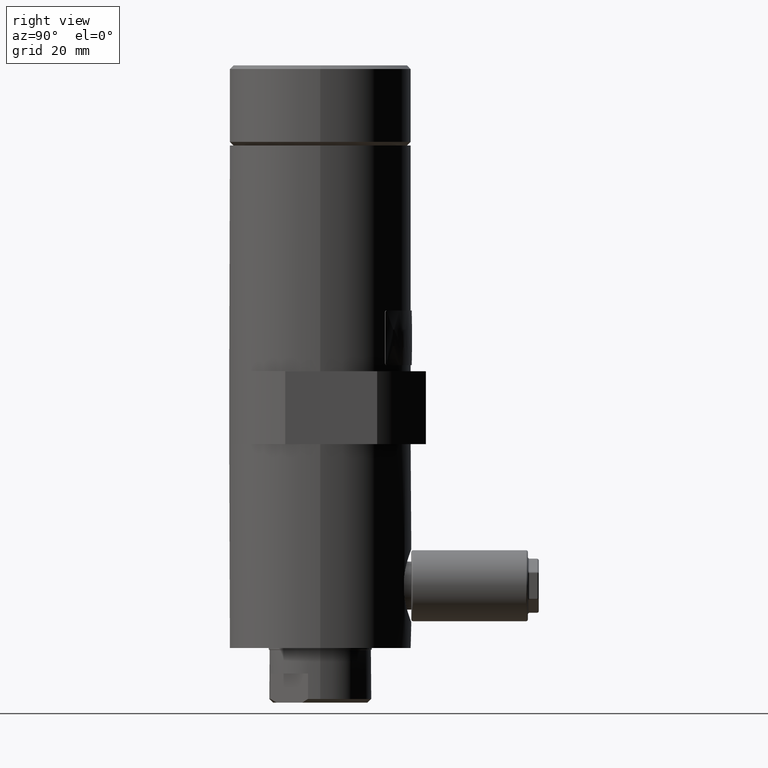
[diagram: clean part render]
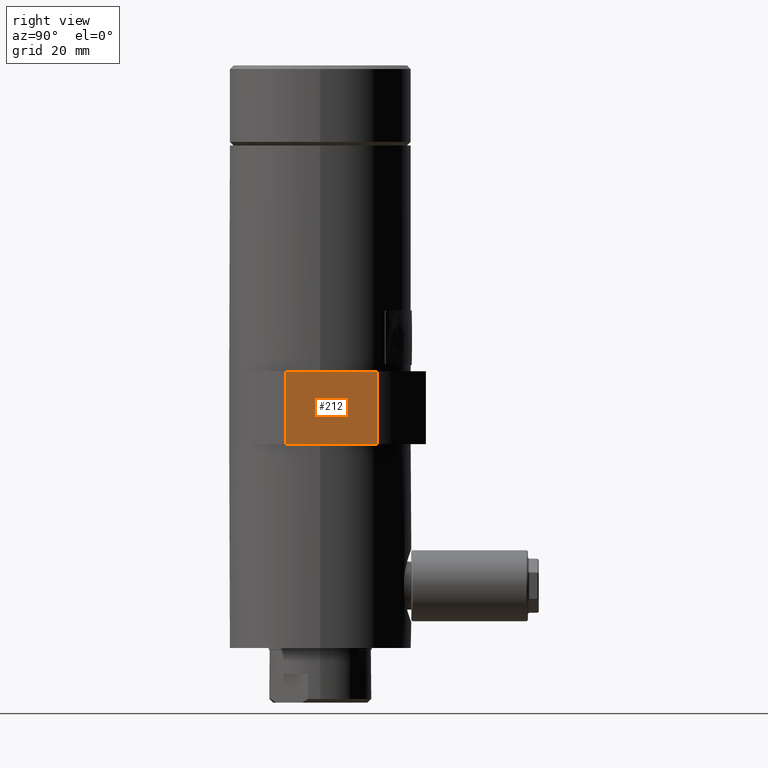
[diagram: same view with one face highlighted and labeled with its STEP entity id]
A machine part, right view. The second image highlights one B-rep face of the part: STEP entity #212.
In plain terms, the highlighted planar face has unit normal (-1, 0, -0).
Its self-contained STEP definition (entity closure, byte-faithful):
#61 = LINE ( 'NONE', #423, #5453 ) ;
#212 = ADVANCED_FACE ( 'NONE', ( #2615 ), #5391, .F. ) ;
#282 = CARTESIAN_POINT ( 'NONE',  ( 25.00000000000000000, -9.609520212918489800, 81.52468314162909700 ) ) ;
#335 = EDGE_CURVE ( 'NONE', #3188, #5906, #2221, .T. ) ;
#412 = VECTOR ( 'NONE', #4577, 1000.000000000000000 ) ;
#422 = VECTOR ( 'NONE', #4161, 1000.000000000000000 ) ;
#423 = CARTESIAN_POINT ( 'NONE',  ( 25.00000000000000000, 31.00000000000000000, 61.52468314162910400 ) ) ;
#442 = DIRECTION ( 'NONE',  ( 2.574111338686239600E-017, -1.038109137218916000E-017, -1.000000000000000000 ) ) ;
#693 = VERTEX_POINT ( 'NONE', #2541 ) ;
#954 = LINE ( 'NONE', #3456, #4103 ) ;
#1438 = DIRECTION ( 'NONE',  ( -1.015365522392176000E-016, -1.000000000000000000, 1.038109137218916000E-017 ) ) ;
#1940 = LINE ( 'NONE', #1996, #412 ) ;
#1996 = CARTESIAN_POINT ( 'NONE',  ( 25.00000000000000000, 31.00000000000000000, 61.52468314162910400 ) ) ;
#2204 = DIRECTION ( 'NONE',  ( -2.574111338686239600E-017, 1.038109137218916000E-017, 1.000000000000000000 ) ) ;
#2220 = CARTESIAN_POINT ( 'NONE',  ( 25.00000000000000000, 15.60952021291850000, 81.52468314162909700 ) ) ;
#2221 = LINE ( 'NONE', #3026, #3996 ) ;
#2316 = CARTESIAN_POINT ( 'NONE',  ( 25.00000000000000000, 31.00000000000000000, 143.5246831416290000 ) ) ;
#2426 = VECTOR ( 'NONE', #2204, 1000.000000000000000 ) ;
#2541 = CARTESIAN_POINT ( 'NONE',  ( 25.00000000000000000, -9.609520212918489800, 61.52468314162910400 ) ) ;
#2615 = FACE_OUTER_BOUND ( 'NONE', #3280, .T. ) ;
#2675 = EDGE_CURVE ( 'NONE', #3188, #5518, #3322, .T. ) ;
#2755 = CARTESIAN_POINT ( 'NONE',  ( 25.00000000000000000, -9.609520212918489800, 5.524683141629100000 ) ) ;
#2852 = EDGE_CURVE ( 'NONE', #693, #4353, #5400, .T. ) ;
#2925 = DIRECTION ( 'NONE',  ( -1.000000000000000000, 1.015365522392176000E-016, -2.574111338686239600E-017 ) ) ;
#3026 = CARTESIAN_POINT ( 'NONE',  ( 25.00000000000000000, 15.60952021291850000, 5.524683141629100000 ) ) ;
#3075 = CARTESIAN_POINT ( 'NONE',  ( 25.00000000000000000, -1.957072689137849900E-015, 61.52468314162910400 ) ) ;
#3188 = VERTEX_POINT ( 'NONE', #2220 ) ;
#3280 = EDGE_LOOP ( 'NONE', ( #3967, #6267, #3957, #4100, #6248, #3596 ) ) ;
#3322 = LINE ( 'NONE', #4184, #422 ) ;
#3456 = CARTESIAN_POINT ( 'NONE',  ( 25.00000000000000000, 31.00000000000000000, 81.52468314162909700 ) ) ;
#3592 = EDGE_CURVE ( 'NONE', #693, #5101, #1940, .T. ) ;
#3596 = ORIENTED_EDGE ( 'NONE', *, *, #2675, .T. ) ;
#3941 = DIRECTION ( 'NONE',  ( -1.015365522392176000E-016, -1.000000000000000000, 1.038109137218916000E-017 ) ) ;
#3957 = ORIENTED_EDGE ( 'NONE', *, *, #3592, .T. ) ;
#3967 = ORIENTED_EDGE ( 'NONE', *, *, #4413, .T. ) ;
#3996 = VECTOR ( 'NONE', #442, 1000.000000000000000 ) ;
#4100 = ORIENTED_EDGE ( 'NONE', *, *, #5537, .T. ) ;
#4103 = VECTOR ( 'NONE', #1438, 1000.000000000000000 ) ;
#4106 = DIRECTION ( 'NONE',  ( 1.015365522392176000E-016, 1.000000000000000000, -1.038109137218916000E-017 ) ) ;
#4161 = DIRECTION ( 'NONE',  ( -1.015365522392176000E-016, -1.000000000000000000, 1.038109137218916000E-017 ) ) ;
#4184 = CARTESIAN_POINT ( 'NONE',  ( 25.00000000000000000, 31.00000000000000000, 81.52468314162909700 ) ) ;
#4353 = VERTEX_POINT ( 'NONE', #282 ) ;
#4413 = EDGE_CURVE ( 'NONE', #5518, #4353, #954, .T. ) ;
#4577 = DIRECTION ( 'NONE',  ( 1.015365522392176000E-016, 1.000000000000000000, -1.038109137218916000E-017 ) ) ;
#4600 = CARTESIAN_POINT ( 'NONE',  ( 25.00000000000000000, -1.749450861694065300E-015, 81.52468314162909700 ) ) ;
#5101 = VERTEX_POINT ( 'NONE', #3075 ) ;
#5391 = PLANE ( 'NONE',  #6362 ) ;
#5400 = LINE ( 'NONE', #2755, #2426 ) ;
#5453 = VECTOR ( 'NONE', #4106, 1000.000000000000000 ) ;
#5518 = VERTEX_POINT ( 'NONE', #4600 ) ;
#5537 = EDGE_CURVE ( 'NONE', #5101, #5906, #61, .T. ) ;
#5906 = VERTEX_POINT ( 'NONE', #6251 ) ;
#6248 = ORIENTED_EDGE ( 'NONE', *, *, #335, .F. ) ;
#6251 = CARTESIAN_POINT ( 'NONE',  ( 25.00000000000000000, 15.60952021291850000, 61.52468314162910400 ) ) ;
#6267 = ORIENTED_EDGE ( 'NONE', *, *, #2852, .F. ) ;
#6362 = AXIS2_PLACEMENT_3D ( 'NONE', #2316, #2925, #3941 ) ;